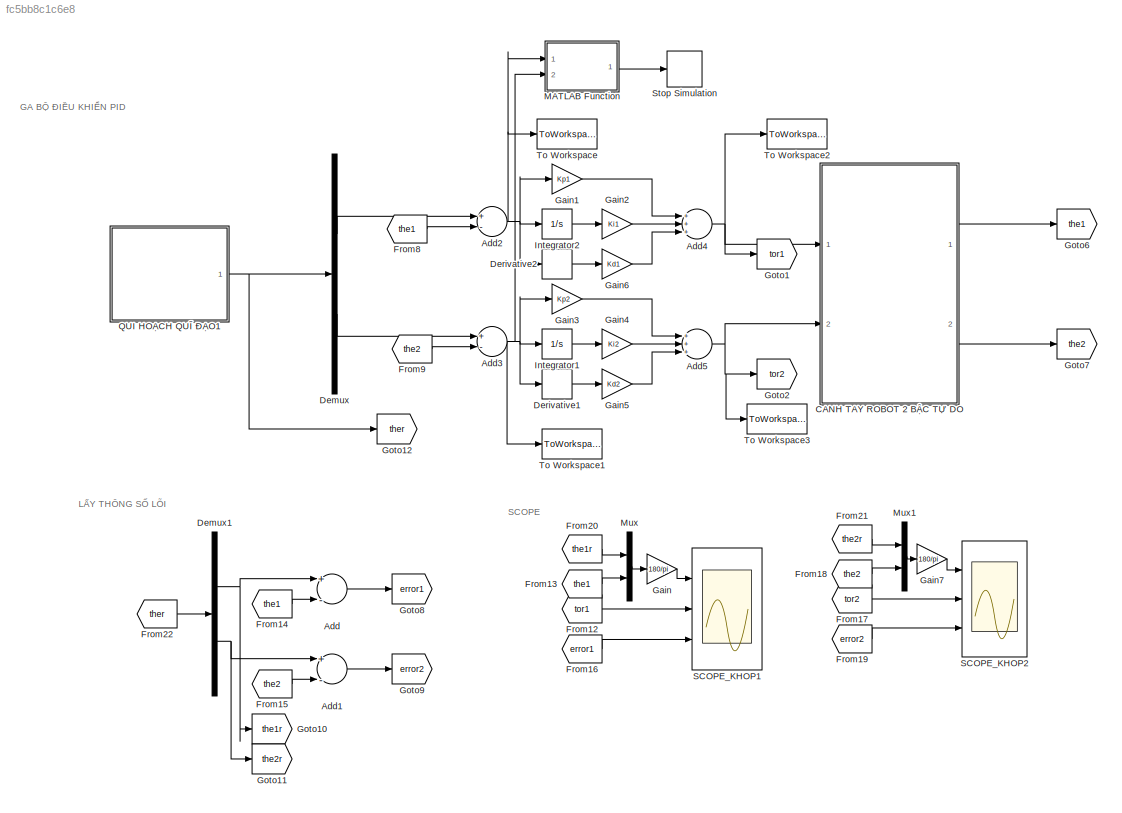
MODEL slx_fc5bb8c1c6e8
KIND model
CONFIG AbsTol = auto
CONFIG EnableMultiTasking = off
CONFIG FixedStep = 0.01
CONFIG MaxStep = auto
CONFIG MinStep = auto
CONFIG RelTol = 1e-3
CONFIG SampleTimeConstraint = Unconstrained
CONFIG Solver = FixedStepAuto
CONFIG SolverName = FixedStepAuto
CONFIG StartTime = 0.0
CONFIG StopTime = 40
BLOCK [Sum] Add
  InputSameDT = off
  Inputs = +-
  OutDataTypeStr = Inherit: Inherit via internal rule
  Ports = [2, 1]
  SaturateOnIntegerOverflow = off
BLOCK [Sum] Add1
  InputSameDT = off
  Inputs = +-
  OutDataTypeStr = Inherit: Inherit via internal rule
  Ports = [2, 1]
  SaturateOnIntegerOverflow = off
BLOCK [Sum] Add2
  InputSameDT = off
  Inputs = +-
  OutDataTypeStr = Inherit: Inherit via internal rule
  Ports = [2, 1]
  SaturateOnIntegerOverflow = off
BLOCK [Sum] Add3
  InputSameDT = off
  Inputs = +-
  OutDataTypeStr = Inherit: Inherit via internal rule
  Ports = [2, 1]
  SaturateOnIntegerOverflow = off
BLOCK [Sum] Add4
  InputSameDT = off
  Inputs = +++
  OutDataTypeStr = Inherit: Inherit via internal rule
  Ports = [3, 1]
  SaturateOnIntegerOverflow = off
BLOCK [Sum] Add5
  InputSameDT = off
  Inputs = +++
  OutDataTypeStr = Inherit: Inherit via internal rule
  Ports = [3, 1]
  SaturateOnIntegerOverflow = off
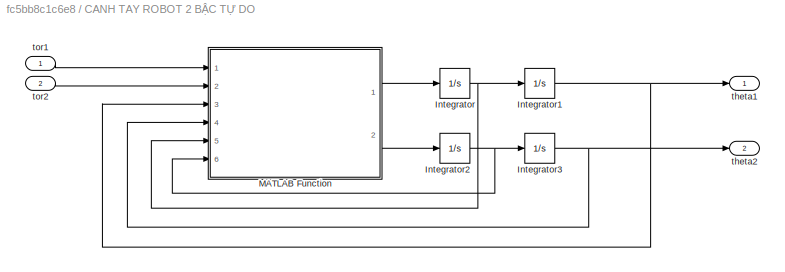
BLOCK [SubSystem] CANH TAY ROBOT 2 BẬC TỰ DO
  Ports = [2, 2]
  RequestExecContextInheritance = off
  Variant = off
BLOCK [Integrator] CANH TAY ROBOT 2 BẬC TỰ DO/Integrator
  Ports = [1, 1]
BLOCK [Integrator] CANH TAY ROBOT 2 BẬC TỰ DO/Integrator1
  Ports = [1, 1]
BLOCK [Integrator] CANH TAY ROBOT 2 BẬC TỰ DO/Integrator2
  Ports = [1, 1]
BLOCK [Integrator] CANH TAY ROBOT 2 BẬC TỰ DO/Integrator3
  Ports = [1, 1]
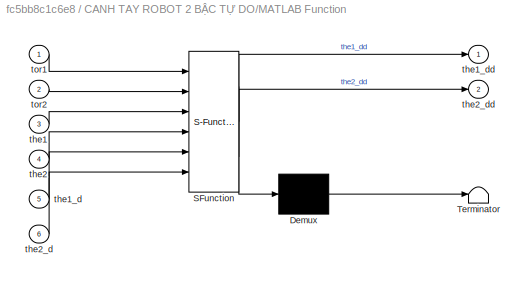
BLOCK [SubSystem] CANH TAY ROBOT 2 BẬC TỰ DO/MATLAB Function
  ErrorFcn = Stateflow.Translate.translate
  PermitHierarchicalResolution = ExplicitOnly
  Ports = [6, 2]
  RequestExecContextInheritance = off
  SFBlockType = MATLAB Function
  TreatAsAtomicUnit = on
  Variant = off
BLOCK [Demux] CANH TAY ROBOT 2 BẬC TỰ DO/MATLAB Function/ Demux 
  Outputs = 1
  Ports = [1, 1]
BLOCK [S-Function] CANH TAY ROBOT 2 BẬC TỰ DO/MATLAB Function/ SFunction 
  EnableBusSupport = on
  FunctionName = sf_sfun
  PortCounts = [6 3]
  Ports = [6, 3]
  SFcnIsStateOwnerBlock = off
  SFunctionDeploymentMode = off
  Tag = Stateflow S-Function GA_PID_2DOF 2
BLOCK [Terminator] CANH TAY ROBOT 2 BẬC TỰ DO/MATLAB Function/ Terminator 
BLOCK [Inport] CANH TAY ROBOT 2 BẬC TỰ DO/MATLAB Function/the1
  IconDisplay = Port number
  Port = 3
BLOCK [Inport] CANH TAY ROBOT 2 BẬC TỰ DO/MATLAB Function/the1_d
  IconDisplay = Port number
  Port = 5
BLOCK [Outport] CANH TAY ROBOT 2 BẬC TỰ DO/MATLAB Function/the1_dd
  IconDisplay = Port number
BLOCK [Inport] CANH TAY ROBOT 2 BẬC TỰ DO/MATLAB Function/the2
  IconDisplay = Port number
  Port = 4
BLOCK [Inport] CANH TAY ROBOT 2 BẬC TỰ DO/MATLAB Function/the2_d
  IconDisplay = Port number
  Port = 6
BLOCK [Outport] CANH TAY ROBOT 2 BẬC TỰ DO/MATLAB Function/the2_dd
  IconDisplay = Port number
  Port = 2
BLOCK [Inport] CANH TAY ROBOT 2 BẬC TỰ DO/MATLAB Function/tor1
  IconDisplay = Port number
BLOCK [Inport] CANH TAY ROBOT 2 BẬC TỰ DO/MATLAB Function/tor2
  IconDisplay = Port number
  Port = 2
BLOCK [Outport] CANH TAY ROBOT 2 BẬC TỰ DO/theta1
  IconDisplay = Port number
BLOCK [Outport] CANH TAY ROBOT 2 BẬC TỰ DO/theta2
  IconDisplay = Port number
  Port = 2
BLOCK [Inport] CANH TAY ROBOT 2 BẬC TỰ DO/tor1
  IconDisplay = Port number
BLOCK [Inport] CANH TAY ROBOT 2 BẬC TỰ DO/tor2
  IconDisplay = Port number
  Port = 2
BLOCK [Demux] Demux
  DisplayOption = bar
  Outputs = 2
  Ports = [1, 2]
BLOCK [Demux] Demux1
  DisplayOption = bar
  Outputs = 2
  Ports = [1, 2]
BLOCK [Derivative] Derivative1
BLOCK [Derivative] Derivative2
BLOCK [From] From12
  GotoTag = tor1
BLOCK [From] From13
  GotoTag = the1
BLOCK [From] From14
  GotoTag = the1
BLOCK [From] From15
  GotoTag = the2
BLOCK [From] From16
  GotoTag = error1
BLOCK [From] From17
  GotoTag = tor2
BLOCK [From] From18
  GotoTag = the2
BLOCK [From] From19
  GotoTag = error2
BLOCK [From] From20
  GotoTag = the1r
BLOCK [From] From21
  GotoTag = the2r
BLOCK [From] From22
  GotoTag = ther
BLOCK [From] From8
  GotoTag = the1
BLOCK [From] From9
  GotoTag = the2
BLOCK [Gain] Gain
  Gain = 180/pi
  OutDataTypeStr = Inherit: Inherit via internal rule
  ParamDataTypeStr = Inherit: Inherit via internal rule
  SaturateOnIntegerOverflow = off
BLOCK [Gain] Gain1
  Gain = Kp1
  OutDataTypeStr = Inherit: Inherit via internal rule
  ParamDataTypeStr = Inherit: Inherit via internal rule
  SaturateOnIntegerOverflow = off
BLOCK [Gain] Gain2
  Gain = Ki1
  OutDataTypeStr = Inherit: Inherit via internal rule
  ParamDataTypeStr = Inherit: Inherit via internal rule
  SaturateOnIntegerOverflow = off
BLOCK [Gain] Gain3
  Gain = Kp2
  OutDataTypeStr = Inherit: Inherit via internal rule
  ParamDataTypeStr = Inherit: Inherit via internal rule
  SaturateOnIntegerOverflow = off
BLOCK [Gain] Gain4
  Gain = Ki2
  OutDataTypeStr = Inherit: Inherit via internal rule
  ParamDataTypeStr = Inherit: Inherit via internal rule
  SaturateOnIntegerOverflow = off
BLOCK [Gain] Gain5
  Gain = Kd2
  OutDataTypeStr = Inherit: Inherit via internal rule
  ParamDataTypeStr = Inherit: Inherit via internal rule
  SaturateOnIntegerOverflow = off
BLOCK [Gain] Gain6
  Gain = Kd1
  OutDataTypeStr = Inherit: Inherit via internal rule
  ParamDataTypeStr = Inherit: Inherit via internal rule
  SaturateOnIntegerOverflow = off
BLOCK [Gain] Gain7
  Gain = 180/pi
  OutDataTypeStr = Inherit: Inherit via internal rule
  ParamDataTypeStr = Inherit: Inherit via internal rule
  SaturateOnIntegerOverflow = off
BLOCK [Goto] Goto1
  GotoTag = tor1
BLOCK [Goto] Goto10
  GotoTag = the1r
BLOCK [Goto] Goto11
  GotoTag = the2r
BLOCK [Goto] Goto12
  GotoTag = ther
BLOCK [Goto] Goto2
  GotoTag = tor2
BLOCK [Goto] Goto6
  GotoTag = the1
BLOCK [Goto] Goto7
  GotoTag = the2
BLOCK [Goto] Goto8
  GotoTag = error1
BLOCK [Goto] Goto9
  GotoTag = error2
BLOCK [Integrator] Integrator1
  Ports = [1, 1]
BLOCK [Integrator] Integrator2
  Ports = [1, 1]
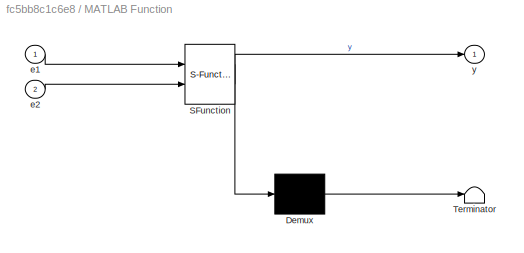
BLOCK [SubSystem] MATLAB Function
  ErrorFcn = Stateflow.Translate.translate
  PermitHierarchicalResolution = ExplicitOnly
  Ports = [2, 1]
  RequestExecContextInheritance = off
  SFBlockType = MATLAB Function
  TreatAsAtomicUnit = on
  Variant = off
BLOCK [Demux] MATLAB Function/ Demux 
  Outputs = 1
  Ports = [1, 1]
BLOCK [S-Function] MATLAB Function/ SFunction 
  EnableBusSupport = on
  FunctionName = sf_sfun
  PortCounts = [2 2]
  Ports = [2, 2]
  SFcnIsStateOwnerBlock = off
  SFunctionDeploymentMode = off
  Tag = Stateflow S-Function GA_PID_2DOF 1
BLOCK [Terminator] MATLAB Function/ Terminator 
BLOCK [Inport] MATLAB Function/e1
  IconDisplay = Port number
BLOCK [Inport] MATLAB Function/e2
  IconDisplay = Port number
  Port = 2
BLOCK [Outport] MATLAB Function/y
  IconDisplay = Port number
BLOCK [Mux] Mux
  DisplayOption = bar
  Inputs = 2
  Ports = [2, 1]
BLOCK [Mux] Mux1
  DisplayOption = bar
  Inputs = 2
  Ports = [2, 1]
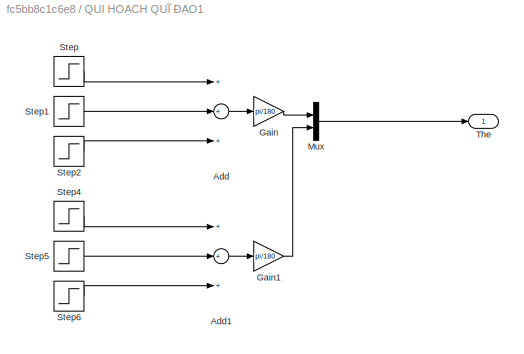
BLOCK [SubSystem] QUI HOẠCH QUĨ ĐẠO1
  Ports = [0, 1]
  RequestExecContextInheritance = off
  Variant = off
BLOCK [Sum] QUI HOẠCH QUĨ ĐẠO1/Add
  InputSameDT = off
  Inputs = +++
  OutDataTypeStr = Inherit: Inherit via internal rule
  Ports = [3, 1]
  SaturateOnIntegerOverflow = off
BLOCK [Sum] QUI HOẠCH QUĨ ĐẠO1/Add1
  InputSameDT = off
  Inputs = +++
  OutDataTypeStr = Inherit: Inherit via internal rule
  Ports = [3, 1]
  SaturateOnIntegerOverflow = off
BLOCK [Gain] QUI HOẠCH QUĨ ĐẠO1/Gain
  Gain = pi/180
  OutDataTypeStr = Inherit: Inherit via internal rule
  ParamDataTypeStr = Inherit: Inherit via internal rule
  SaturateOnIntegerOverflow = off
BLOCK [Gain] QUI HOẠCH QUĨ ĐẠO1/Gain1
  Gain = pi/180
  OutDataTypeStr = Inherit: Inherit via internal rule
  ParamDataTypeStr = Inherit: Inherit via internal rule
  SaturateOnIntegerOverflow = off
BLOCK [Mux] QUI HOẠCH QUĨ ĐẠO1/Mux
  DisplayOption = bar
  Inputs = 2
  Ports = [2, 1]
BLOCK [Step] QUI HOẠCH QUĨ ĐẠO1/Step
  After = 0
  Before = -45
  SampleTime = 0.01
  Time = 10
BLOCK [Step] QUI HOẠCH QUĨ ĐẠO1/Step1
  After = -30
  SampleTime = 0
  Time = 20
BLOCK [Step] QUI HOẠCH QUĨ ĐẠO1/Step2
  After = 45
  SampleTime = 0
  Time = 30
BLOCK [Step] QUI HOẠCH QUĨ ĐẠO1/Step4
  After = -30
  Before = 30
  SampleTime = 0.01
  Time = 10
BLOCK [Step] QUI HOẠCH QUĨ ĐẠO1/Step5
  After = 30
  SampleTime = 0
  Time = 20
BLOCK [Step] QUI HOẠCH QUĨ ĐẠO1/Step6
  After = -45
  SampleTime = 0
  Time = 30
BLOCK [Outport] QUI HOẠCH QUĨ ĐẠO1/The
  IconDisplay = Port number
BLOCK [Scope] SCOPE_KHOP1
  NumInputPorts = 3
  Ports = [3]
  ScopeSpecificationString = Simulink.scopes.TimeScopeBlockCfg('CurrentConfiguration', extmgr.ConfigurationSet(extmgr.Configuration('Core','General UI',true,'FigureColor',[1 1 1]),extmgr.Configuration('Core','Source UI',true),extmgr.Configuration('Sources','WiredSimulink',true,'DataLoggingVariableName','ScopeData1'),extmgr.Configuration('Visuals','Time Domain',true,'SerializedDisplays',{struct('MinYLimReal','-70.62181','MaxYL...<+3220ch>
BLOCK [Scope] SCOPE_KHOP2
  NumInputPorts = 3
  Ports = [3]
  ScopeSpecificationString = Simulink.scopes.TimeScopeBlockCfg('CurrentConfiguration', extmgr.ConfigurationSet(extmgr.Configuration('Core','General UI',true,'FigureColor',[1 1 1]),extmgr.Configuration('Core','Source UI',true),extmgr.Configuration('Sources','WiredSimulink',true),extmgr.Configuration('Visuals','Time Domain',true,'SerializedDisplays',{struct('MinYLimReal','-100.76078','MaxYLimReal','44.8585','YLabelReal','','Min...<+3156ch>
BLOCK [Stop] Stop Simulation
BLOCK [ToWorkspace] To Workspace
  FixptAsFi = on
  MaxDataPoints = inf
  Ports = [1]
  SampleTime = -1
  Save2DSignal = 3-D array (concatenate along third dimension)
  VariableName = e1
BLOCK [ToWorkspace] To Workspace1
  FixptAsFi = on
  MaxDataPoints = inf
  Ports = [1]
  SampleTime = -1
  Save2DSignal = 3-D array (concatenate along third dimension)
  VariableName = e2
BLOCK [ToWorkspace] To Workspace2
  FixptAsFi = on
  MaxDataPoints = inf
  Ports = [1]
  SampleTime = -1
  Save2DSignal = 3-D array (concatenate along third dimension)
  VariableName = u1
BLOCK [ToWorkspace] To Workspace3
  FixptAsFi = on
  MaxDataPoints = inf
  Ports = [1]
  SampleTime = -1
  Save2DSignal = 3-D array (concatenate along third dimension)
  VariableName = u2
ANNOTATION (root): GA BỘ ĐIỀU KHIỂN PID
ANNOTATION (root): LẤY THÔNG SỐ LỖI
ANNOTATION (root): SCOPE
LINE Add1:1 -> Goto9:1
NET Add2:1 -> Derivative2:1, Gain1:1, Integrator2:1, MATLAB Function:1, To Workspace:1
NET Add3:1 -> Derivative1:1, Gain3:1, Integrator1:1, MATLAB Function:2, To Workspace1:1
NET Add4:1 -> CANH TAY ROBOT 2 BẬC TỰ DO:1, Goto1:1, To Workspace2:1
NET Add5:1 -> CANH TAY ROBOT 2 BẬC TỰ DO:2, Goto2:1, To Workspace3:1
LINE Add:1 -> Goto8:1
NET CANH TAY ROBOT 2 BẬC TỰ DO/Integrator1:1 -> CANH TAY ROBOT 2 BẬC TỰ DO/MATLAB Function:3, CANH TAY ROBOT 2 BẬC TỰ DO/theta1:1
NET CANH TAY ROBOT 2 BẬC TỰ DO/Integrator2:1 -> CANH TAY ROBOT 2 BẬC TỰ DO/Integrator3:1, CANH TAY ROBOT 2 BẬC TỰ DO/MATLAB Function:6
NET CANH TAY ROBOT 2 BẬC TỰ DO/Integrator3:1 -> CANH TAY ROBOT 2 BẬC TỰ DO/MATLAB Function:4, CANH TAY ROBOT 2 BẬC TỰ DO/theta2:1
NET CANH TAY ROBOT 2 BẬC TỰ DO/Integrator:1 -> CANH TAY ROBOT 2 BẬC TỰ DO/Integrator1:1, CANH TAY ROBOT 2 BẬC TỰ DO/MATLAB Function:5
LINE CANH TAY ROBOT 2 BẬC TỰ DO/MATLAB Function:1 -> CANH TAY ROBOT 2 BẬC TỰ DO/Integrator:1
LINE CANH TAY ROBOT 2 BẬC TỰ DO/MATLAB Function:2 -> CANH TAY ROBOT 2 BẬC TỰ DO/Integrator2:1
LINE CANH TAY ROBOT 2 BẬC TỰ DO/tor1:1 -> CANH TAY ROBOT 2 BẬC TỰ DO/MATLAB Function:1
LINE CANH TAY ROBOT 2 BẬC TỰ DO/tor2:1 -> CANH TAY ROBOT 2 BẬC TỰ DO/MATLAB Function:2
LINE CANH TAY ROBOT 2 BẬC TỰ DO:1 -> Goto6:1
LINE CANH TAY ROBOT 2 BẬC TỰ DO:2 -> Goto7:1
NET Demux1:1 -> Add:1, Goto10:1
NET Demux1:2 -> Add1:1, Goto11:1
LINE Demux:1 -> Add2:1
LINE Demux:2 -> Add3:1
LINE Derivative1:1 -> Gain5:1
LINE Derivative2:1 -> Gain6:1
LINE From12:1 -> SCOPE_KHOP1:2
LINE From13:1 -> Mux:2
LINE From14:1 -> Add:2
LINE From15:1 -> Add1:2
LINE From16:1 -> SCOPE_KHOP1:3
LINE From17:1 -> SCOPE_KHOP2:2
LINE From18:1 -> Mux1:2
LINE From19:1 -> SCOPE_KHOP2:3
LINE From20:1 -> Mux:1
LINE From21:1 -> Mux1:1
LINE From22:1 -> Demux1:1
LINE From8:1 -> Add2:2
LINE From9:1 -> Add3:2
LINE Gain1:1 -> Add4:1
LINE Gain2:1 -> Add4:2
LINE Gain3:1 -> Add5:1
LINE Gain4:1 -> Add5:2
LINE Gain5:1 -> Add5:3
LINE Gain6:1 -> Add4:3
LINE Gain7:1 -> SCOPE_KHOP2:1
LINE Gain:1 -> SCOPE_KHOP1:1
LINE Integrator1:1 -> Gain4:1
LINE Integrator2:1 -> Gain2:1
LINE MATLAB Function:1 -> Stop Simulation:1
LINE Mux1:1 -> Gain7:1
LINE Mux:1 -> Gain:1
LINE QUI HOẠCH QUĨ ĐẠO1/Add1:1 -> QUI HOẠCH QUĨ ĐẠO1/Gain1:1
LINE QUI HOẠCH QUĨ ĐẠO1/Add:1 -> QUI HOẠCH QUĨ ĐẠO1/Gain:1
LINE QUI HOẠCH QUĨ ĐẠO1/Gain1:1 -> QUI HOẠCH QUĨ ĐẠO1/Mux:2
LINE QUI HOẠCH QUĨ ĐẠO1/Gain:1 -> QUI HOẠCH QUĨ ĐẠO1/Mux:1
LINE QUI HOẠCH QUĨ ĐẠO1/Mux:1 -> QUI HOẠCH QUĨ ĐẠO1/The:1
LINE QUI HOẠCH QUĨ ĐẠO1/Step1:1 -> QUI HOẠCH QUĨ ĐẠO1/Add:2
LINE QUI HOẠCH QUĨ ĐẠO1/Step2:1 -> QUI HOẠCH QUĨ ĐẠO1/Add:3
LINE QUI HOẠCH QUĨ ĐẠO1/Step4:1 -> QUI HOẠCH QUĨ ĐẠO1/Add1:1
LINE QUI HOẠCH QUĨ ĐẠO1/Step5:1 -> QUI HOẠCH QUĨ ĐẠO1/Add1:2
LINE QUI HOẠCH QUĨ ĐẠO1/Step6:1 -> QUI HOẠCH QUĨ ĐẠO1/Add1:3
LINE QUI HOẠCH QUĨ ĐẠO1/Step:1 -> QUI HOẠCH QUĨ ĐẠO1/Add:1
NET QUI HOẠCH QUĨ ĐẠO1:1 -> Demux:1, Goto12:1
note: NET lines group one-source signal fan-out (src -> all destinations, sorted); 1:1 wires keep LINE
CHART MATLAB Function states=1 transitions=1
  STATE_LABEL 'eML_blk_kernel()'
  STATE_LABEL 'SCRIPT:\nfunction y = fcn(e1,e2)\nif(abs(e1)>3)||(abs(e2)>3)\n    y=1;\nelse\n    y=0;\nend\nend\n'
CHART CANH TAY ROBOT 2 BẬC TỰ DO/MATLAB Function states=1 transitions=1
  STATE_LABEL 'eML_blk_kernel()'
  STATE_LABEL 'SCRIPT:\nfunction [the1_dd,the2_dd] = PTVP(tor1,tor2,the1,the2,the1_d,the2_d)\nJ1=0.05;\nJ2=0.05;\nm1=1;\nm2=1;\nm3=0;%Khoi luong cua hai khop\nl1=1;\nl2=1;\nlc1=0.4;\nlc2=0.4;\ng=9.81;\nH11=J1+J2+m1*(lc1^2)+m2*((l1^2)+(lc2^2)+2*l1*lc2*cos(the2))+m3*(l1*l1+l2*l2+2*l1*l2*cos(the2));\nH22=J2+m2*lc2*lc2+m3*l2*l2;\nH12=J2+m2*(lc2*lc2+l1*lc2*cos(the2))+m3*(l2*l2+2*l1*l2*cos(the2));\nH21=H12;\nH=[H11 H12;\n   H21 H22];\n...<+325ch>'
